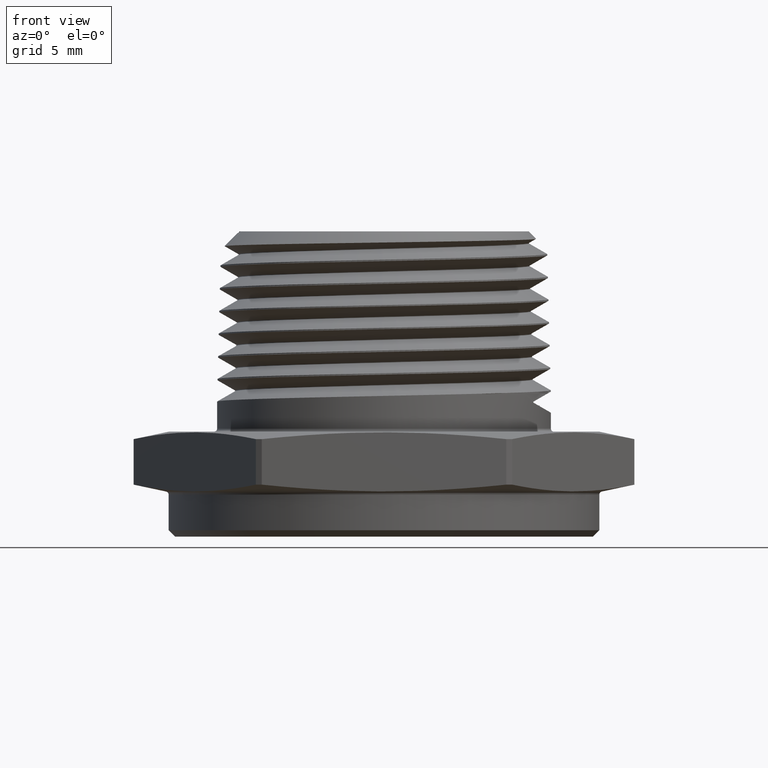
[diagram: clean part render]
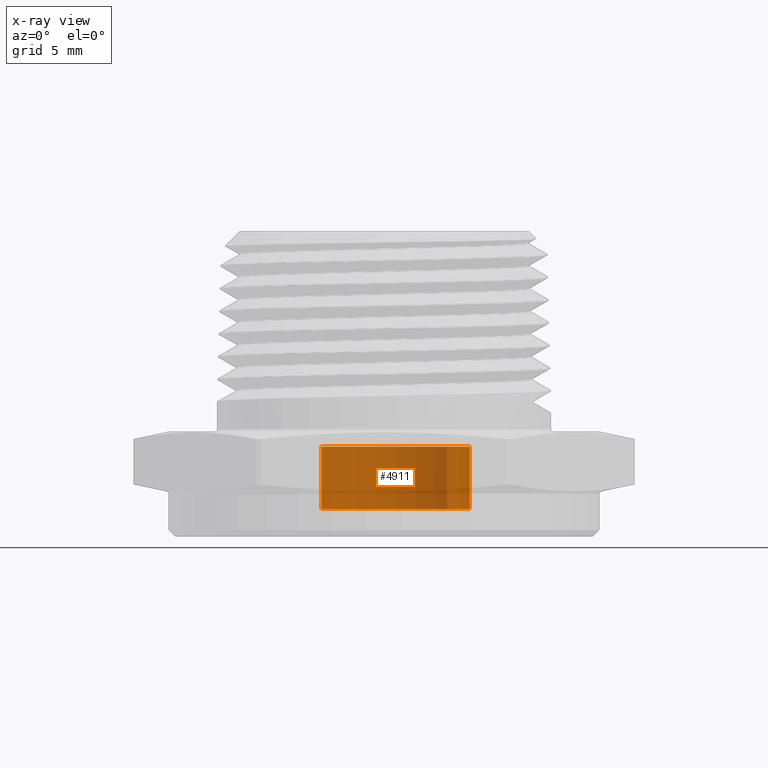
[diagram: x-ray — body ghosted, one internal face saturated and labeled with its STEP entity id]
A machine part, front view, then the same camera in x-ray: the body is ghosted and one INTERNAL B-rep face — a face not visible from any outside direction — is saturated and labeled: STEP entity #4911.
In plain terms, the highlighted cylindrical surface (partial cylindrical patch) has radius 6.858 mm, axis along (-0, 0, -1).
Its self-contained STEP definition (entity closure, byte-faithful):
#302 = CARTESIAN_POINT ( 'NONE',  ( 0.1166800539378871600, -0.1164497935006366300, 0.2162204724409450800 ) ) ;
#303 = DIRECTION ( 'NONE',  ( 0.0000000000000000000, 0.0000000000000000000, -1.000000000000000000 ) ) ;
#304 = DIRECTION ( 'NONE',  ( 1.000000000000000000, 0.0000000000000000000, 0.0000000000000000000 ) ) ;
#312 = CARTESIAN_POINT ( 'NONE',  ( -0.1533199460621128800, -0.1164497935006366300, 0.2362204724409449100 ) ) ;
#313 = CARTESIAN_POINT ( 'NONE',  ( 0.3866800539378872400, -0.1164497935006366000, 0.2362204724409449100 ) ) ;
#314 = CARTESIAN_POINT ( 'NONE',  ( 0.1166800539378871600, -0.1164497935006366300, 0.02000000000000009400 ) ) ;
#315 = DIRECTION ( 'NONE',  ( -0.0000000000000000000, -0.0000000000000000000, 1.000000000000000000 ) ) ;
#316 = DIRECTION ( 'NONE',  ( 1.000000000000000000, 0.0000000000000000000, 0.0000000000000000000 ) ) ;
#317 = DIRECTION ( 'NONE',  ( -0.0000000000000000000, -0.0000000000000000000, -1.000000000000000000 ) ) ;
#318 = DIRECTION ( 'NONE',  ( -0.0000000000000000000, -0.0000000000000000000, -1.000000000000000000 ) ) ;
#753 = CIRCLE ( 'NONE', #4598, 0.2700000000000000700 ) ;
#773 = CIRCLE ( 'NONE', #4600, 0.2700000000000000700 ) ;
#776 = LINE ( 'NONE', #313, #780 ) ;
#777 = LINE ( 'NONE', #312, #782 ) ;
#780 = VECTOR ( 'NONE', #317, 39.37007874015748100 ) ;
#782 = VECTOR ( 'NONE', #318, 39.37007874015748100 ) ;
#823 = CYLINDRICAL_SURFACE ( 'NONE', #4623, 0.2700000000000000700 ) ;
#824 = FACE_OUTER_BOUND ( 'NONE', #5613, .T. ) ;
#887 = ORIENTED_EDGE ( 'NONE', *, *, #4334, .T. ) ;
#888 = ORIENTED_EDGE ( 'NONE', *, *, #4342, .T. ) ;
#889 = ORIENTED_EDGE ( 'NONE', *, *, #4339, .T. ) ;
#890 = ORIENTED_EDGE ( 'NONE', *, *, #4344, .F. ) ;
#1242 = CARTESIAN_POINT ( 'NONE',  ( -0.1533199460621128800, -0.1164497935006366300, 0.2162204724409450800 ) ) ;
#1243 = CARTESIAN_POINT ( 'NONE',  ( 0.3866800539378872400, -0.1164497935006366000, 0.2162204724409450800 ) ) ;
#1245 = CARTESIAN_POINT ( 'NONE',  ( 0.3866800539378872400, -0.1164497935006366000, 0.02000000000000009400 ) ) ;
#1246 = CARTESIAN_POINT ( 'NONE',  ( -0.1533199460621128800, -0.1164497935006366300, 0.02000000000000009400 ) ) ;
#2839 = DIRECTION ( 'NONE',  ( -1.000000000000000000, 0.0000000000000000000, 0.0000000000000000000 ) ) ;
#2840 = CARTESIAN_POINT ( 'NONE',  ( 0.1166800539378871600, -0.1164497935006366300, 0.2362204724409449100 ) ) ;
#2841 = DIRECTION ( 'NONE',  ( -0.0000000000000000000, -0.0000000000000000000, -1.000000000000000000 ) ) ;
#4334 = EDGE_CURVE ( 'NONE', #4878, #4879, #753, .T. ) ;
#4339 = EDGE_CURVE ( 'NONE', #4881, #4882, #773, .T. ) ;
#4342 = EDGE_CURVE ( 'NONE', #4879, #4881, #776, .T. ) ;
#4344 = EDGE_CURVE ( 'NONE', #4878, #4882, #777, .T. ) ;
#4598 = AXIS2_PLACEMENT_3D ( 'NONE', #302, #303, #304 ) ;
#4600 = AXIS2_PLACEMENT_3D ( 'NONE', #314, #315, #316 ) ;
#4623 = AXIS2_PLACEMENT_3D ( 'NONE', #2840, #2841, #2839 ) ;
#4878 = VERTEX_POINT ( 'NONE', #1242 ) ;
#4879 = VERTEX_POINT ( 'NONE', #1243 ) ;
#4881 = VERTEX_POINT ( 'NONE', #1245 ) ;
#4882 = VERTEX_POINT ( 'NONE', #1246 ) ;
#4911 = ADVANCED_FACE ( 'NONE', ( #824 ), #823, .T. ) ;
#5613 = EDGE_LOOP ( 'NONE', ( #887, #888, #889, #890 ) ) ;